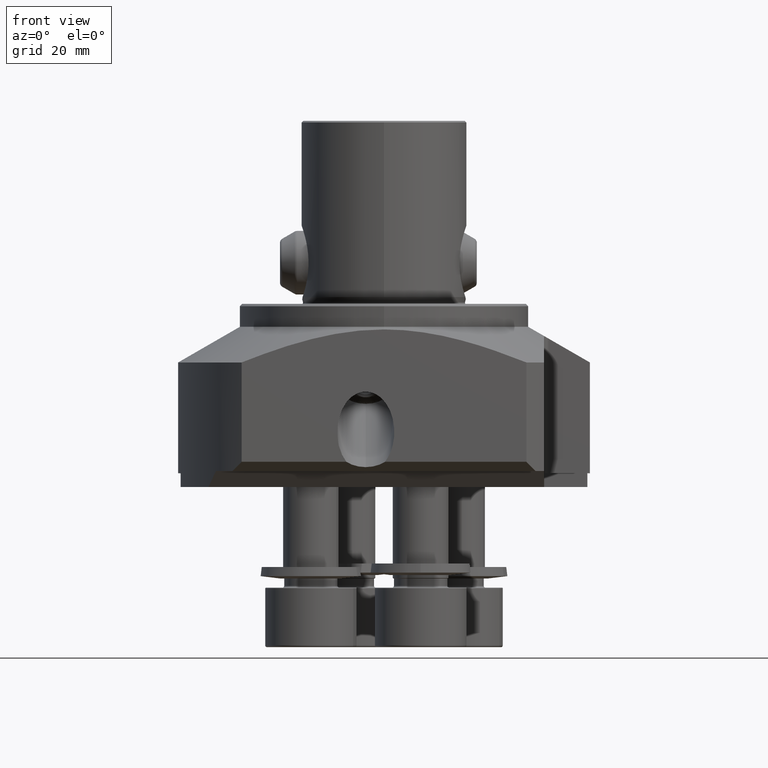
[diagram: clean part render]
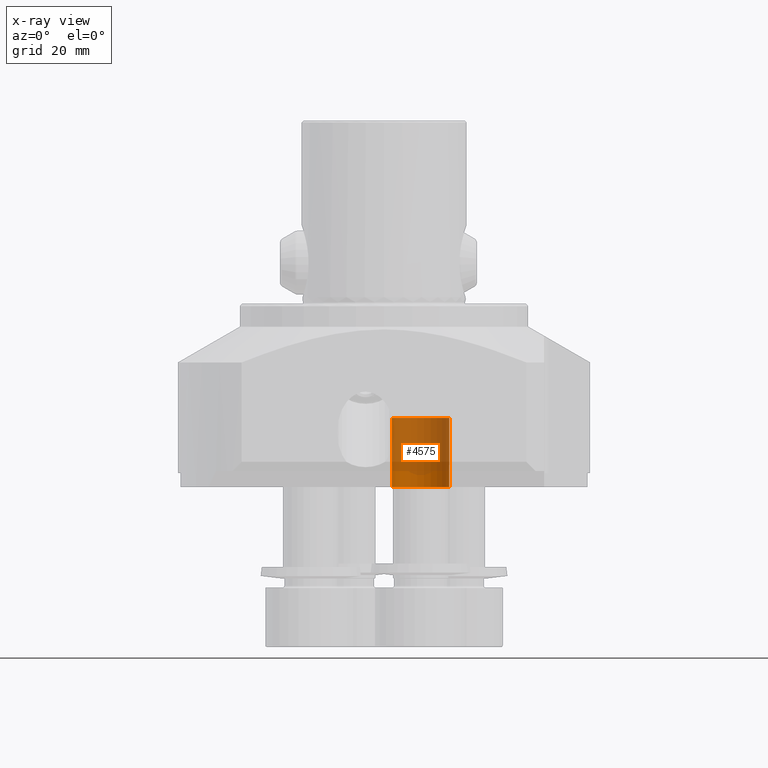
[diagram: x-ray — body ghosted, one internal face saturated and labeled with its STEP entity id]
A machine part, front view, then the same camera in x-ray: the body is ghosted and one INTERNAL B-rep face — a face not visible from any outside direction — is saturated and labeled: STEP entity #4575.
In plain terms, the highlighted cylindrical surface (edge-blend (fillet) strip) has radius 6.25 mm, axis along (-0, -0, -1).
Its self-contained STEP definition (entity closure, byte-faithful):
#2229=VERTEX_POINT('NONE',#6354);
#2643=VERTEX_POINT('NONE',#6833);
#2889=EDGE_CURVE('NONE',#2643,#6179,#7107,.T.);
#2925=VERTEX_POINT('NONE',#7144);
#2927=EDGE_CURVE('NONE',#2229,#6179,#7146,.T.);
#3991=EDGE_CURVE('NONE',#2925,#2643,#8335,.T.);
#4575=ADVANCED_FACE('NONE',(#9000),#9001,.F.);
#5139=EDGE_CURVE('NONE',#2229,#2925,#9629,.T.);
#6179=VERTEX_POINT('NONE',#10797);
#6354=CARTESIAN_POINT('',(1.7499999999999,-14.0,-24.9185657694061));
#6833=CARTESIAN_POINT('',(14.2499999999999,-14.0000000000001,-40.0));
#7107=CIRCLE('',#12140,6.25);
#7144=CARTESIAN_POINT('',(14.2499999999999,-14.0000000000001,-24.9185657694061));
#7146=LINE('',#12230,#12231);
#8335=LINE('',#13931,#13932);
#9000=FACE_OUTER_BOUND('',#14899,.T.);
#9001=CYLINDRICAL_SURFACE('',#14900,6.25);
#9629=CIRCLE('',#15956,6.25);
#10797=CARTESIAN_POINT('',(1.74999999999991,-14.0,-40.0));
#12140=AXIS2_PLACEMENT_3D('',#18951,#18952,#18953);
#12230=CARTESIAN_POINT('',(1.74999999999991,-14.0,-47.2988977917561));
#12231=VECTOR('',#18977,1000.0);
#13931=CARTESIAN_POINT('',(14.2499999999999,-14.0000000000001,-47.2988977917561));
#13932=VECTOR('',#20475,1000.0);
#14899=EDGE_LOOP('',(#21341,#21342,#21343,#21344));
#14900=AXIS2_PLACEMENT_3D('',#21345,#21346,#21347);
#15956=AXIS2_PLACEMENT_3D('',#22121,#22122,#22123);
#18951=CARTESIAN_POINT('',(7.99999999999991,-14.0000000000001,-40.0));
#18952=DIRECTION('',(0.0,-0.0,1.0));
#18953=DIRECTION('',(0.0,1.0,0.0));
#18977=DIRECTION('',(1.3323900613391E-016,-9.30403545934596E-031,-1.0));
#20475=DIRECTION('',(1.3323900613391E-016,-9.30403545934596E-031,-1.0));
#21341=ORIENTED_EDGE('',*,*,#5139,.F.);
#21342=ORIENTED_EDGE('',*,*,#2927,.T.);
#21343=ORIENTED_EDGE('',*,*,#2889,.F.);
#21344=ORIENTED_EDGE('',*,*,#3991,.F.);
#21345=CARTESIAN_POINT('',(7.99999999999991,-14.0000000000001,-47.2988977917561));
#21346=DIRECTION('',(-4.0746701216935E-047,-5.87221850934929E-033,-1.0));
#21347=DIRECTION('',(1.0,-6.93889390390723E-015,-0.0));
#22121=CARTESIAN_POINT('',(7.99999999999991,-14.0000000000001,-24.9185657694061));
#22122=DIRECTION('',(-4.0746701216935E-047,-5.87221850934929E-033,-1.0));
#22123=DIRECTION('',(1.0,-6.93889390390723E-015,0.0));